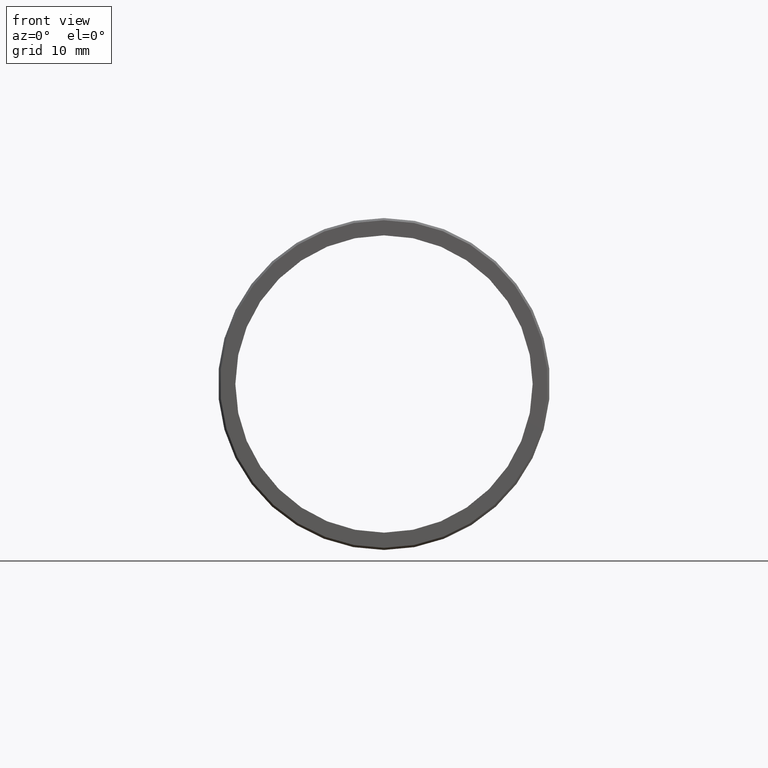
[diagram: clean part render]
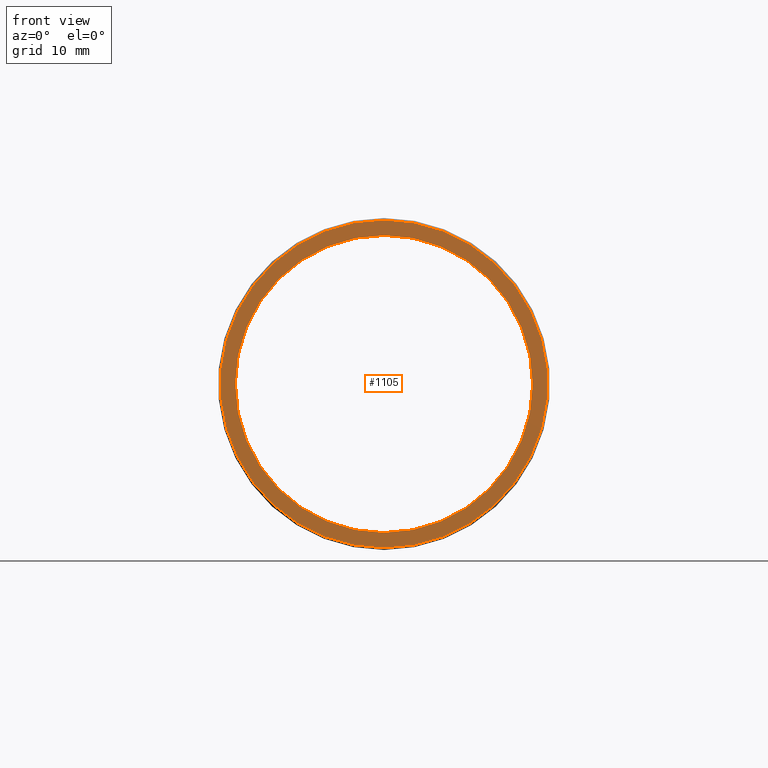
[diagram: same view with one face highlighted and labeled with its STEP entity id]
A machine part, front view. The second image highlights one B-rep face of the part: STEP entity #1105.
In plain terms, the highlighted planar face has unit normal (0, 1, 0).
Its self-contained STEP definition (entity closure, byte-faithful):
#218 = FACE_OUTER_BOUND ( 'NONE', #4406, .T. ) ;
#232 = CARTESIAN_POINT ( 'NONE',  ( 2.336013769373575000E-015, -32.50000000000000000, -18.94999999999998200 ) ) ;
#394 = DIRECTION ( 'NONE',  ( 0.0000000000000000000, 0.0000000000000000000, -1.000000000000000000 ) ) ;
#774 = AXIS2_PLACEMENT_3D ( 'NONE', #2344, #8500, #3213 ) ;
#989 = CARTESIAN_POINT ( 'NONE',  ( 0.0000000000000000000, -32.50000000000000000, 0.0000000000000000000 ) ) ;
#1105 = ADVANCED_FACE ( 'NONE', ( #218, #2547 ), #5917, .F. ) ;
#1195 = CIRCLE ( 'NONE', #1972, 17.19999999999999900 ) ;
#1512 = ORIENTED_EDGE ( 'NONE', *, *, #7083, .F. ) ;
#1889 = DIRECTION ( 'NONE',  ( 0.0000000000000000000, 0.0000000000000000000, 1.000000000000000000 ) ) ;
#1972 = AXIS2_PLACEMENT_3D ( 'NONE', #2376, #8540, #3251 ) ;
#2274 = AXIS2_PLACEMENT_3D ( 'NONE', #6786, #11152, #10226 ) ;
#2316 = VERTEX_POINT ( 'NONE', #8674 ) ;
#2344 = CARTESIAN_POINT ( 'NONE',  ( 0.0000000000000000000, -32.50000000000000000, 0.0000000000000000000 ) ) ;
#2376 = CARTESIAN_POINT ( 'NONE',  ( 0.0000000000000000000, -32.50000000000000000, 0.0000000000000000000 ) ) ;
#2547 = FACE_BOUND ( 'NONE', #10644, .T. ) ;
#3156 = EDGE_CURVE ( 'NONE', #7874, #5677, #4454, .T. ) ;
#3161 = AXIS2_PLACEMENT_3D ( 'NONE', #989, #7207, #1889 ) ;
#3213 = DIRECTION ( 'NONE',  ( 0.0000000000000000000, 0.0000000000000000000, 1.000000000000000000 ) ) ;
#3251 = DIRECTION ( 'NONE',  ( 0.0000000000000000000, 0.0000000000000000000, -1.000000000000000000 ) ) ;
#4074 = VERTEX_POINT ( 'NONE', #6081 ) ;
#4406 = EDGE_LOOP ( 'NONE', ( #11073, #7793 ) ) ;
#4454 = CIRCLE ( 'NONE', #3161, 18.94999999999998200 ) ;
#5550 = CIRCLE ( 'NONE', #10279, 17.19999999999999900 ) ;
#5677 = VERTEX_POINT ( 'NONE', #232 ) ;
#5681 = DIRECTION ( 'NONE',  ( 0.0000000000000000000, -1.000000000000000000, 0.0000000000000000000 ) ) ;
#5917 = PLANE ( 'NONE',  #2274 ) ;
#6081 = CARTESIAN_POINT ( 'NONE',  ( 0.0000000000000000000, -32.50000000000000000, -17.19999999999999900 ) ) ;
#6786 = CARTESIAN_POINT ( 'NONE',  ( 0.0000000000000000000, -32.50000000000000000, 0.0000000000000000000 ) ) ;
#7028 = EDGE_CURVE ( 'NONE', #5677, #7874, #8220, .T. ) ;
#7048 = CARTESIAN_POINT ( 'NONE',  ( 0.0000000000000000000, -32.50000000000000000, 18.94999999999998200 ) ) ;
#7083 = EDGE_CURVE ( 'NONE', #2316, #4074, #1195, .T. ) ;
#7207 = DIRECTION ( 'NONE',  ( -0.0000000000000000000, -1.000000000000000000, -0.0000000000000000000 ) ) ;
#7793 = ORIENTED_EDGE ( 'NONE', *, *, #7028, .T. ) ;
#7874 = VERTEX_POINT ( 'NONE', #7048 ) ;
#8220 = CIRCLE ( 'NONE', #774, 18.94999999999998200 ) ;
#8387 = ORIENTED_EDGE ( 'NONE', *, *, #11219, .F. ) ;
#8500 = DIRECTION ( 'NONE',  ( -0.0000000000000000000, -1.000000000000000000, -0.0000000000000000000 ) ) ;
#8540 = DIRECTION ( 'NONE',  ( 0.0000000000000000000, -1.000000000000000000, 0.0000000000000000000 ) ) ;
#8674 = CARTESIAN_POINT ( 'NONE',  ( 2.106392494533447400E-015, -32.50000000000000000, 17.19999999999999900 ) ) ;
#10226 = DIRECTION ( 'NONE',  ( 0.0000000000000000000, -0.0000000000000000000, 1.000000000000000000 ) ) ;
#10279 = AXIS2_PLACEMENT_3D ( 'NONE', #10945, #5681, #394 ) ;
#10644 = EDGE_LOOP ( 'NONE', ( #8387, #1512 ) ) ;
#10945 = CARTESIAN_POINT ( 'NONE',  ( 0.0000000000000000000, -32.50000000000000000, 0.0000000000000000000 ) ) ;
#11073 = ORIENTED_EDGE ( 'NONE', *, *, #3156, .T. ) ;
#11152 = DIRECTION ( 'NONE',  ( 0.0000000000000000000, 1.000000000000000000, 0.0000000000000000000 ) ) ;
#11219 = EDGE_CURVE ( 'NONE', #4074, #2316, #5550, .T. ) ;